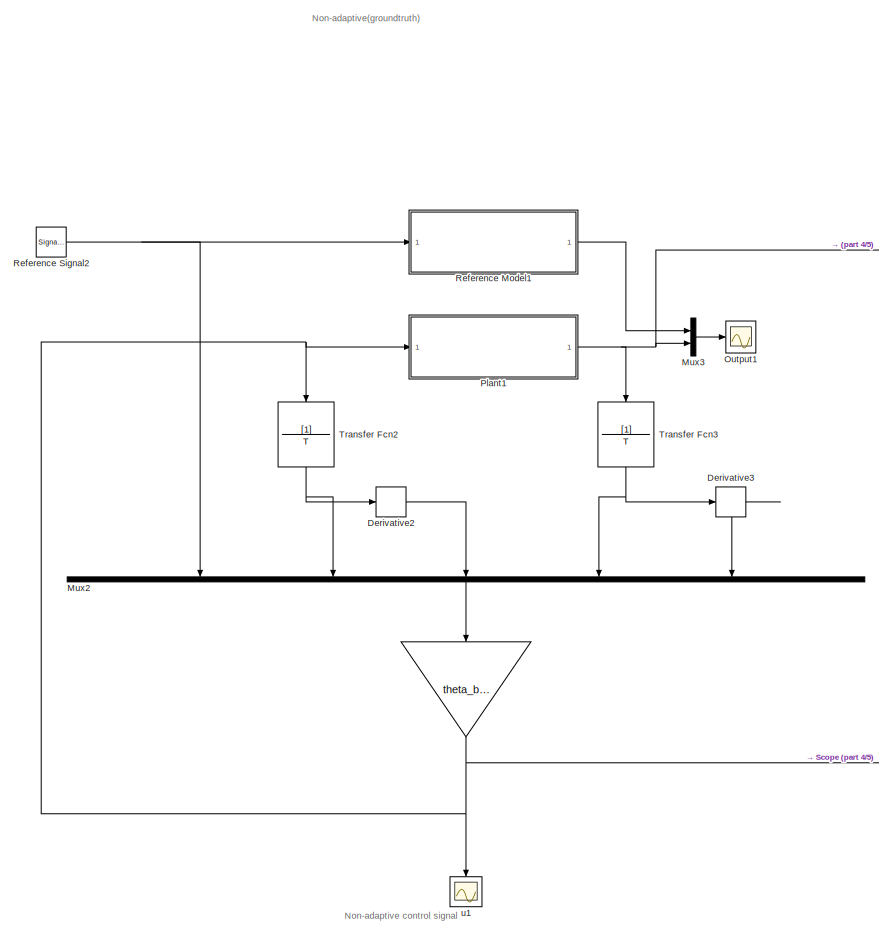
[diagram: root canvas - part 1/5, left side, full height]
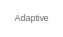
[diagram: root canvas - part 2/5, top right region]
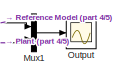
[diagram: root canvas - part 3/5, top right region]
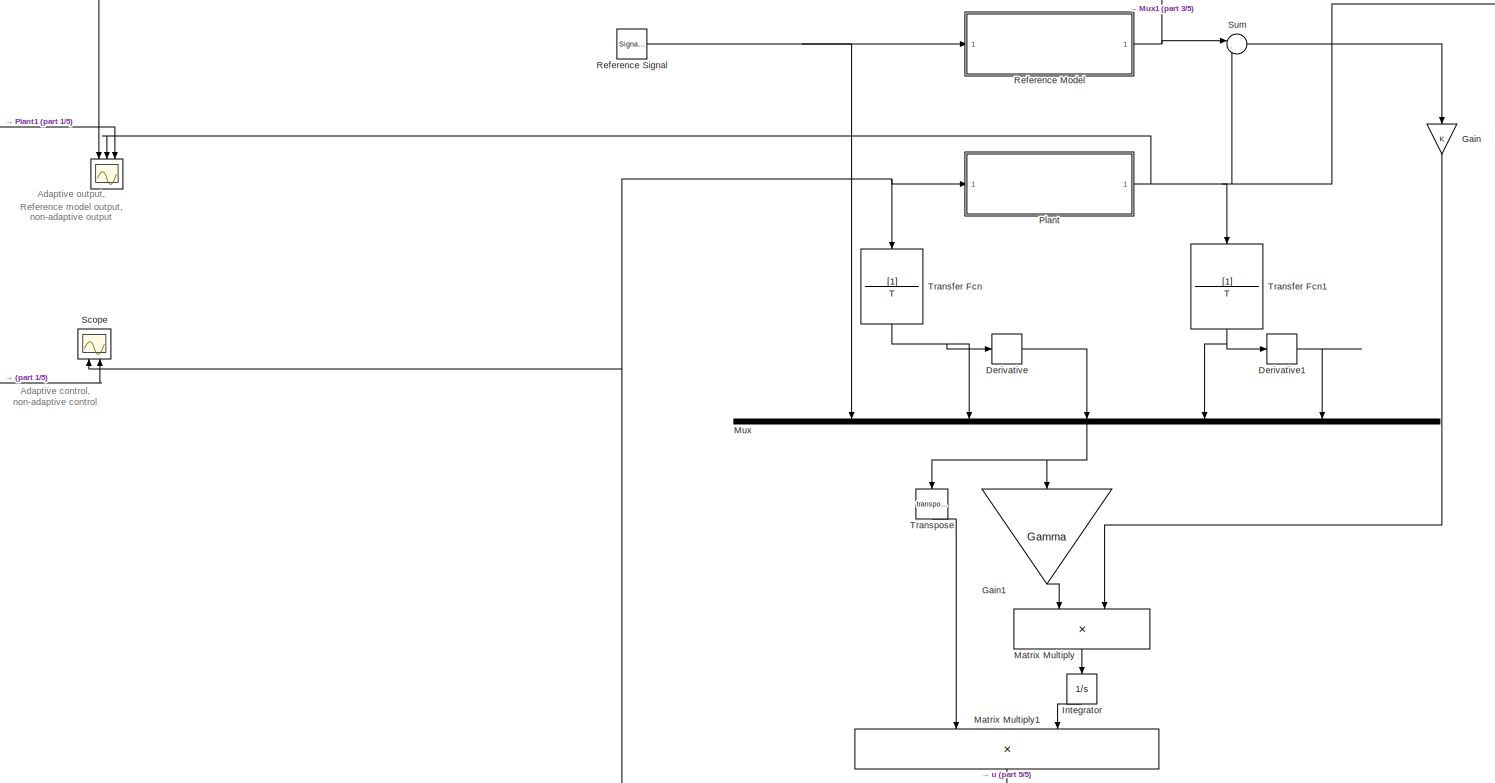
[diagram: root canvas - part 4/5, right side, full height]
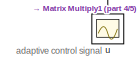
[diagram: root canvas - part 5/5, bottom right region]
MODEL slx_b33cb9a4141f
KIND model
CONFIG AbsTol = auto
CONFIG EnableMultiTasking = off
CONFIG FixedStep = auto
CONFIG MaxStep = auto
CONFIG MinStep = auto
CONFIG RelTol = 1e-3
CONFIG SampleTimeConstraint = Unconstrained
CONFIG SolverName = VariableStepAuto
CONFIG StartTime = 0.0
CONFIG StopTime = 20
BLOCK [Scope]  
  Floating = off
  NameLocation = left
  NumInputPorts = 3
  Ports = [3]
  ScopeSpecificationString = Simulink.scopes.TimeScopeBlockCfg('CurrentConfiguration', extmgr.ConfigurationSet(extmgr.Configuration('Core','General UI',true,'FigureColor',[1 1 1]),extmgr.Configuration('Core','Source UI',true),extmgr.Configuration('Sources','WiredSimulink',true,'DataLoggingVariableName','ScopeData4'),extmgr.Configuration('Visuals','Time Domain',true,'SerializedDisplays',{struct('MinYLimReal','-10','MaxYLimReal...<+1853ch>
BLOCK [Gain]   
  Gain = theta_bar_star
  Multiplication = Matrix(K*u) (u vector)
  NameLocation = right
BLOCK [Derivative] Derivative
BLOCK [Derivative] Derivative1
BLOCK [Derivative] Derivative2
BLOCK [Derivative] Derivative3
BLOCK [Gain] Gain
  NameLocation = left
BLOCK [Gain] Gain1
  Gain = Gamma
  Multiplication = Matrix(K*u)
  NameLocation = left
BLOCK [Integrator] Integrator
  NameLocation = left
  Ports = [1, 1]
BLOCK [Product] Matrix Multiply
  Multiplication = Matrix(*)
  NameLocation = left
  Ports = [2, 1]
BLOCK [Product] Matrix Multiply1
  Multiplication = Matrix(*)
  NameLocation = left
  Ports = [2, 1]
BLOCK [Mux] Mux
  DisplayOption = bar
  Inputs = 5
  NameLocation = left
  Ports = [5, 1]
BLOCK [Mux] Mux1
  DisplayOption = bar
  Inputs = 2
  Ports = [2, 1]
BLOCK [Mux] Mux2
  DisplayOption = bar
  Inputs = 5
  NameLocation = left
  Ports = [5, 1]
BLOCK [Mux] Mux3
  DisplayOption = bar
  Inputs = 2
  Ports = [2, 1]
BLOCK [Scope] Output
  Floating = off
  NumInputPorts = 1
  Ports = [1]
  ScopeSpecificationString = Simulink.scopes.TimeScopeBlockCfg('CurrentConfiguration', extmgr.ConfigurationSet(extmgr.Configuration('Core','General UI',true),extmgr.Configuration('Core','Source UI',true),extmgr.Configuration('Sources','WiredSimulink',true,'DataLoggingVariableName','ScopeData1'),extmgr.Configuration('Visuals','Time Domain',true,'SerializedDisplays',{struct('MinYLimReal','-1.27967','MaxYLimReal','1.25457','YLab...<+1558ch>
BLOCK [Scope] Output1
  Floating = off
  NumInputPorts = 1
  Ports = [1]
  ScopeSpecificationString = Simulink.scopes.TimeScopeBlockCfg('CurrentConfiguration', extmgr.ConfigurationSet(extmgr.Configuration('Core','General UI',true),extmgr.Configuration('Core','Source UI',true),extmgr.Configuration('Sources','WiredSimulink',true,'DataLoggingVariableName','ScopeData2'),extmgr.Configuration('Visuals','Time Domain',true,'SerializedDisplays',{struct('MinYLimReal','-1.27967','MaxYLimReal','1.25457','YLab...<+1645ch>
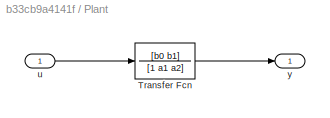
BLOCK [SubSystem] Plant
  Ports = [1, 1]
  RequestExecContextInheritance = off
BLOCK [TransferFcn] Plant/Transfer Fcn
  Denominator = [1 a1 a2]
  Numerator = [b0 b1]
BLOCK [Inport] Plant/u
BLOCK [Outport] Plant/y
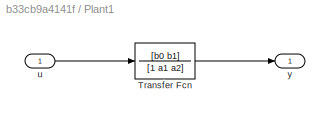
BLOCK [SubSystem] Plant1
  Ports = [1, 1]
  RequestExecContextInheritance = off
BLOCK [TransferFcn] Plant1/Transfer Fcn
  Denominator = [1 a1 a2]
  Numerator = [b0 b1]
BLOCK [Inport] Plant1/u
BLOCK [Outport] Plant1/y
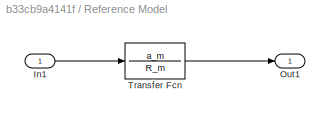
BLOCK [SubSystem] Reference Model
  Ports = [1, 1]
  RequestExecContextInheritance = off
BLOCK [Inport] Reference Model/In1
BLOCK [Outport] Reference Model/Out1
BLOCK [TransferFcn] Reference Model/Transfer Fcn
  Denominator = R_m
  Numerator = a_m
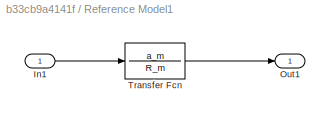
BLOCK [SubSystem] Reference Model1
  Ports = [1, 1]
  RequestExecContextInheritance = off
BLOCK [Inport] Reference Model1/In1
BLOCK [Outport] Reference Model1/Out1
BLOCK [TransferFcn] Reference Model1/Transfer Fcn
  Denominator = R_m
  Numerator = a_m
BLOCK [SignalGenerator] Reference Signal
  Amplitude = 10
  Frequency = 0.5
  Ports = [0, 1]
BLOCK [SignalGenerator] Reference Signal2
  Amplitude = 10
  Frequency = 0.5
  Ports = [0, 1]
BLOCK [Scope] Scope
  Floating = off
  NameLocation = right
  NumInputPorts = 2
  Ports = [2]
  ScopeSpecificationString = Simulink.scopes.TimeScopeBlockCfg('CurrentConfiguration', extmgr.ConfigurationSet(extmgr.Configuration('Core','General UI',true,'FigureColor',[1 1 1]),extmgr.Configuration('Core','Source UI',true),extmgr.Configuration('Sources','WiredSimulink',true,'DataLoggingVariableName','ScopeData5'),extmgr.Configuration('Visuals','Time Domain',true,'SerializedDisplays',{struct('MinYLimReal','-47.02339','MaxYL...<+1724ch>
BLOCK [Sum] Sum
  Inputs = |-+
  Ports = [2, 1]
BLOCK [TransferFcn] Transfer Fcn
  Denominator = T
  NameLocation = left
BLOCK [TransferFcn] Transfer Fcn1
  Denominator = T
  NameLocation = left
BLOCK [TransferFcn] Transfer Fcn2
  Denominator = T
  NameLocation = left
BLOCK [TransferFcn] Transfer Fcn3
  Denominator = T
  NameLocation = left
BLOCK [Math] Transpose
  NameLocation = left
  Operator = transpose
  Ports = [1, 1]
BLOCK [Scope] u
  Floating = off
  NameLocation = left
  NumInputPorts = 1
  Ports = [1]
  ScopeSpecificationString = Simulink.scopes.TimeScopeBlockCfg('CurrentConfiguration', extmgr.ConfigurationSet(extmgr.Configuration('Core','General UI',true),extmgr.Configuration('Core','Source UI',true),extmgr.Configuration('Sources','WiredSimulink',true,'DataLoggingVariableName','ScopeData1'),extmgr.Configuration('Visuals','Time Domain',true,'SerializedDisplays',{struct('MinYLimReal','-97.18957','MaxYLimReal','52.77445','YL...<+1411ch>
BLOCK [Scope] u1
  Floating = off
  NameLocation = left
  NumInputPorts = 1
  Ports = [1]
  ScopeSpecificationString = Simulink.scopes.TimeScopeBlockCfg('CurrentConfiguration', extmgr.ConfigurationSet(extmgr.Configuration('Core','General UI',true),extmgr.Configuration('Core','Source UI',true),extmgr.Configuration('Sources','WiredSimulink',true,'DataLoggingVariableName','ScopeData3'),extmgr.Configuration('Visuals','Time Domain',true,'SerializedDisplays',{struct('MinYLimReal','-31.47734','MaxYLimReal','21.24701','YL...<+1394ch>
ANNOTATION (root): Adaptive
ANNOTATION (root): Adaptive control, non-adaptive control
ANNOTATION (root): Non-adaptive control signal
ANNOTATION (root): Non-adaptive(groundtruth)
ANNOTATION (root): Reference model output, Adaptive output, non-adaptive output
ANNOTATION (root): adaptive control signal
NET   :1 -> Plant1:1, Scope:2, Transfer Fcn2:1, u1:1
LINE Derivative1:1 -> Mux:5
LINE Derivative2:1 -> Mux2:3
LINE Derivative3:1 -> Mux2:5
LINE Derivative:1 -> Mux:3
LINE Gain1:1 -> Matrix Multiply:1
LINE Gain:1 -> Matrix Multiply:2
LINE Integrator:1 -> Matrix Multiply1:2
NET Matrix Multiply1:1 -> Plant:1, Scope:1, Transfer Fcn:1, u:1
LINE Matrix Multiply:1 -> Integrator:1
LINE Mux1:1 -> Output:1
LINE Mux2:1 ->   :1
LINE Mux3:1 -> Output1:1
NET Mux:1 -> Gain1:1, Transpose:1
LINE Plant/Transfer Fcn:1 -> Plant/y:1
LINE Plant/u:1 -> Plant/Transfer Fcn:1
LINE Plant1/Transfer Fcn:1 -> Plant1/y:1
LINE Plant1/u:1 -> Plant1/Transfer Fcn:1
NET Plant1:1 ->  :3, Mux3:2, Transfer Fcn3:1
NET Plant:1 ->  :2, Mux1:2, Sum:2, Transfer Fcn1:1
LINE Reference Model/In1:1 -> Reference Model/Transfer Fcn:1
LINE Reference Model/Transfer Fcn:1 -> Reference Model/Out1:1
LINE Reference Model1/In1:1 -> Reference Model1/Transfer Fcn:1
LINE Reference Model1/Transfer Fcn:1 -> Reference Model1/Out1:1
LINE Reference Model1:1 -> Mux3:1
NET Reference Model:1 ->  :1, Mux1:1, Sum:1
NET Reference Signal2:1 -> Mux2:1, Reference Model1:1
NET Reference Signal:1 -> Mux:1, Reference Model:1
LINE Sum:1 -> Gain:1
NET Transfer Fcn1:1 -> Derivative1:1, Mux:4
NET Transfer Fcn2:1 -> Derivative2:1, Mux2:2
NET Transfer Fcn3:1 -> Derivative3:1, Mux2:4
NET Transfer Fcn:1 -> Derivative:1, Mux:2
LINE Transpose:1 -> Matrix Multiply1:1
note: NET lines group one-source signal fan-out (src -> all destinations, sorted); 1:1 wires keep LINE
